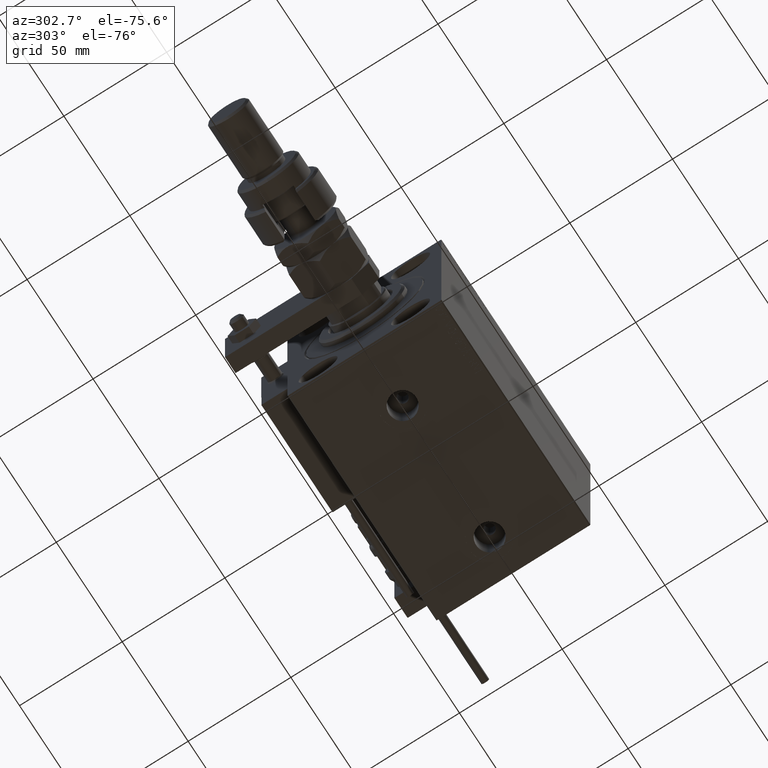
[diagram: clean part render]
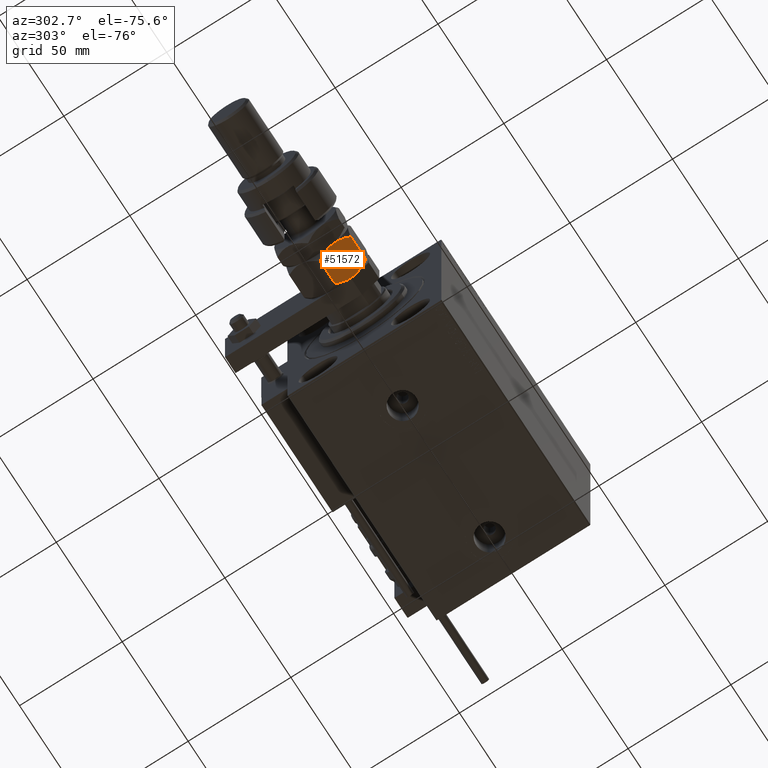
[diagram: same view with one face highlighted and labeled with its STEP entity id]
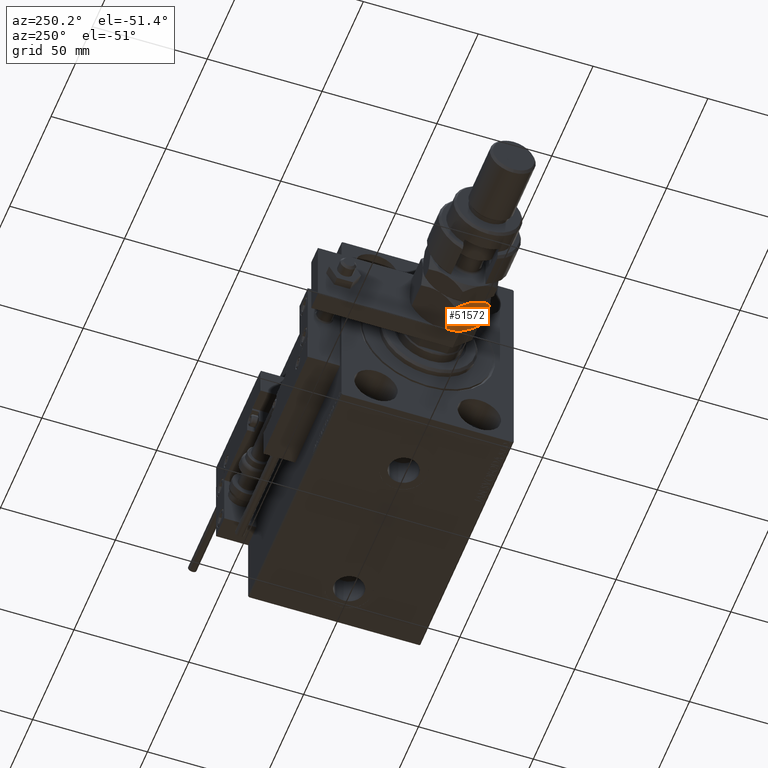
[diagram: same view with one face highlighted and labeled with its STEP entity id]
A machine part, auxiliary view. The second image highlights one B-rep face of the part: STEP entity #51572.
A second angle (auxiliary view) of the same face is appended — the face is thin or edge-on in the first view.
In plain terms, the highlighted planar face has unit normal (0, 0.5, 0.866).
Its self-contained STEP definition (entity closure, byte-faithful):
#2070 = AXIS2_PLACEMENT_3D ( 'NONE', #47164, #22650, #43039 ) ;
#3943 = ORIENTED_EDGE ( 'NONE', *, *, #51360, .F. ) ;
#4187 = CARTESIAN_POINT ( 'NONE',  ( -10.08691881950258740, -11.49682277995505331, 0.2303299219392165864 ) ) ;
#4578 = CARTESIAN_POINT ( 'NONE',  ( -8.156876182308250733, -12.61113341608665905, 16.00000000000000355 ) ) ;
#6215 = EDGE_CURVE ( 'NONE', #17796, #12274, #10689, .T. ) ;
#7227 = CARTESIAN_POINT ( 'NONE',  ( -7.500000000000000000, -12.99038105676658006, 0.000000000000000000 ) ) ;
#8077 = CARTESIAN_POINT ( 'NONE',  ( -14.99999999999999645, -8.660254037844389075, 2.320508075688762606 ) ) ;
#8821 = VERTEX_POINT ( 'NONE', #18476 ) ;
#8848 = ORIENTED_EDGE ( 'NONE', *, *, #49946, .F. ) ;
#10689 = LINE ( 'NONE', #48153, #20143 ) ;
#10743 = VERTEX_POINT ( 'NONE', #49450 ) ;
#11856 = CARTESIAN_POINT ( 'NONE',  ( -8.823580389329300999, -12.22621156269320331, 15.94046462602529957 ) ) ;
#12216 = B_SPLINE_CURVE_WITH_KNOTS ( 'NONE', 3,
 ( #45792, #24048, #19911, #40319, #28189, #36721 ),
 .UNSPECIFIED., .F., .F.,
 ( 4, 2, 4 ),
 ( 0.008977392552884447263, 0.01343452311421656359, 0.01789165367554867991 ),
 .UNSPECIFIED. ) ;
#12274 = VERTEX_POINT ( 'NONE', #47923 ) ;
#12471 = CARTESIAN_POINT ( 'NONE',  ( -8.804550678576912759, -12.23719837131869248, -4.878909776184767981E-16 ) ) ;
#12944 = CARTESIAN_POINT ( 'NONE',  ( -4.881674457977378090, -14.50207201327941320, 0.2838026619462943323 ) ) ;
#13621 = EDGE_CURVE ( 'NONE', #8821, #17796, #12216, .T. ) ;
#15090 = DIRECTION ( 'NONE',  ( -0.000000000000000000, -0.000000000000000000, -1.000000000000000000 ) ) ;
#16673 = EDGE_CURVE ( 'NONE', #12274, #27799, #42137, .T. ) ;
#16725 = LINE ( 'NONE', #20052, #27959 ) ;
#17796 = VERTEX_POINT ( 'NONE', #37689 ) ;
#17808 = CARTESIAN_POINT ( 'NONE',  ( -13.82389157469335750, -9.339280553791368789, 14.35851844025821933 ) ) ;
#18476 = CARTESIAN_POINT ( 'NONE',  ( -7.500000000000001776, -12.99038105676658361, 16.00000000000000000 ) ) ;
#19911 = CARTESIAN_POINT ( 'NONE',  ( -4.913081180497412603, -14.48393933357810504, 15.76967007806078946 ) ) ;
#20052 = CARTESIAN_POINT ( 'NONE',  ( -14.99999999999999645, -8.660254037844389075, 16.00000000000000000 ) ) ;
#20143 = VECTOR ( 'NONE', #15090, 1000.000000000000000 ) ;
#21390 = CARTESIAN_POINT ( 'NONE',  ( -7.500000000000001776, -12.99038105676658361, 16.00000000000000000 ) ) ;
#21467 = CARTESIAN_POINT ( 'NONE',  ( -7.500000000000000000, -12.99038105676658006, 0.000000000000000000 ) ) ;
#21540 = CARTESIAN_POINT ( 'NONE',  ( -12.61607045183964715, -10.03661640420386902, 1.060479031370877845 ) ) ;
#21662 = CARTESIAN_POINT ( 'NONE',  ( -12.62116548881249223, -10.03367478323606221, 14.93551393225599533 ) ) ;
#22305 = CARTESIAN_POINT ( 'NONE',  ( -4.247772349543487813, -14.86805556622358893, 0.4475714085130264031 ) ) ;
#22650 = DIRECTION ( 'NONE',  ( 0.5000000000000000000, 0.8660254037844387076, -0.000000000000000000 ) ) ;
#23039 = VERTEX_POINT ( 'NONE', #48215 ) ;
#23190 = PLANE ( 'NONE',  #2070 ) ;
#23404 = ORIENTED_EDGE ( 'NONE', *, *, #6215, .F. ) ;
#24048 = CARTESIAN_POINT ( 'NONE',  ( -6.195449321423087241, -13.74356374221446586, 16.00000000000001066 ) ) ;
#26148 = EDGE_LOOP ( 'NONE', ( #31100, #23404, #28813, #8848, #46043, #3943 ) ) ;
#26164 = CARTESIAN_POINT ( 'NONE',  ( -6.843123817691746602, -13.36962869744650284, -3.760826285809093999E-16 ) ) ;
#27799 = VERTEX_POINT ( 'NONE', #7227 ) ;
#27959 = VECTOR ( 'NONE', #32460, 1000.000000000000000 ) ;
#28189 = CARTESIAN_POINT ( 'NONE',  ( -1.174746544192163844, -16.64226784216984711, 14.35773215783022572 ) ) ;
#28813 = ORIENTED_EDGE ( 'NONE', *, *, #13621, .F. ) ;
#30608 = B_SPLINE_CURVE_WITH_KNOTS ( 'NONE', 3,
 ( #52385, #17808, #21662, #42604, #34072, #11856, #4578, #21390 ),
 .UNSPECIFIED., .F., .F.,
 ( 4, 2, 2, 4 ),
 ( 2.544309033641602453E-07, 0.004488823491893906108, 0.006733108022389176252, 0.008977392552884447263 ),
 .UNSPECIFIED. ) ;
#30845 = EDGE_CURVE ( 'NONE', #10743, #23039, #16725, .T. ) ;
#31100 = ORIENTED_EDGE ( 'NONE', *, *, #16673, .F. ) ;
#32460 = DIRECTION ( 'NONE',  ( -0.000000000000000000, -0.000000000000000000, -1.000000000000000000 ) ) ;
#33608 = CARTESIAN_POINT ( 'NONE',  ( -2.378834511187505996, -15.94708733029708725, 1.064486067744005560 ) ) ;
#33879 = CARTESIAN_POINT ( 'NONE',  ( -1.176108425306644722, -16.64148155974179488, 1.641481559741788665 ) ) ;
#34072 = CARTESIAN_POINT ( 'NONE',  ( -10.11832554202262102, -11.47869010025374692, 15.71619733805371411 ) ) ;
#34709 = CARTESIAN_POINT ( 'NONE',  ( -2.796947266322166691E-15, -17.32050807568877104, 2.320508075688761718 ) ) ;
#36721 = CARTESIAN_POINT ( 'NONE',  ( -3.416099238086855886E-15, -17.32050807568877104, 13.67949192431124317 ) ) ;
#37689 = CARTESIAN_POINT ( 'NONE',  ( -3.416099238086855886E-15, -17.32050807568877104, 13.67949192431124317 ) ) ;
#38348 = CARTESIAN_POINT ( 'NONE',  ( -13.82525345580783060, -9.338494271363318333, 1.642267842169780279 ) ) ;
#40319 = CARTESIAN_POINT ( 'NONE',  ( -2.383929548160354628, -15.94414570932928576, 14.93952096862912526 ) ) ;
#41941 = CARTESIAN_POINT ( 'NONE',  ( -7.500000000000000000, -12.99038105676658006, 0.000000000000000000 ) ) ;
#42137 = B_SPLINE_CURVE_WITH_KNOTS ( 'NONE', 3,
 ( #34709, #33879, #33608, #22305, #12944, #50958, #26164, #21467 ),
 .UNSPECIFIED., .F., .F.,
 ( 4, 2, 2, 4 ),
 ( 2.544309033648719118E-07, 0.004488823491893905240, 0.006733108022389175384, 0.008977392552884445528 ),
 .UNSPECIFIED. ) ;
#42604 = CARTESIAN_POINT ( 'NONE',  ( -10.75222765045651308, -11.11270654730956409, 15.55242859148697576 ) ) ;
#43039 = DIRECTION ( 'NONE',  ( -0.8660254037844385966, 0.4999999999999999445, 0.000000000000000000 ) ) ;
#44127 = FACE_OUTER_BOUND ( 'NONE', #26148, .T. ) ;
#44362 = B_SPLINE_CURVE_WITH_KNOTS ( 'NONE', 3,
 ( #41941, #12471, #4187, #21540, #38348, #8077 ),
 .UNSPECIFIED., .F., .F.,
 ( 4, 2, 4 ),
 ( 0.008977392552884445528, 0.01343452311421656012, 0.01789165367554867297 ),
 .UNSPECIFIED. ) ;
#45792 = CARTESIAN_POINT ( 'NONE',  ( -7.500000000000001776, -12.99038105676658361, 16.00000000000000000 ) ) ;
#46043 = ORIENTED_EDGE ( 'NONE', *, *, #30845, .T. ) ;
#47164 = CARTESIAN_POINT ( 'NONE',  ( -14.99999999999999645, -8.660254037844389075, 16.00000000000000000 ) ) ;
#47923 = CARTESIAN_POINT ( 'NONE',  ( -2.796947266322166691E-15, -17.32050807568877104, 2.320508075688761718 ) ) ;
#48153 = CARTESIAN_POINT ( 'NONE',  ( -3.035766082959412415E-15, -17.32050807568877104, 16.00000000000000000 ) ) ;
#48215 = CARTESIAN_POINT ( 'NONE',  ( -14.99999999999999645, -8.660254037844389075, 2.320508075688762606 ) ) ;
#49450 = CARTESIAN_POINT ( 'NONE',  ( -14.99999999999999645, -8.660254037844389075, 13.67949192431124139 ) ) ;
#49946 = EDGE_CURVE ( 'NONE', #10743, #8821, #30608, .T. ) ;
#50958 = CARTESIAN_POINT ( 'NONE',  ( -6.176419610670697224, -13.75455055083996214, 0.05953537397470286957 ) ) ;
#51360 = EDGE_CURVE ( 'NONE', #27799, #23039, #44362, .T. ) ;
#51572 = ADVANCED_FACE ( 'NONE', ( #44127 ), #23190, .F. ) ;
#52385 = CARTESIAN_POINT ( 'NONE',  ( -14.99999999999999645, -8.660254037844389075, 13.67949192431124139 ) ) ;